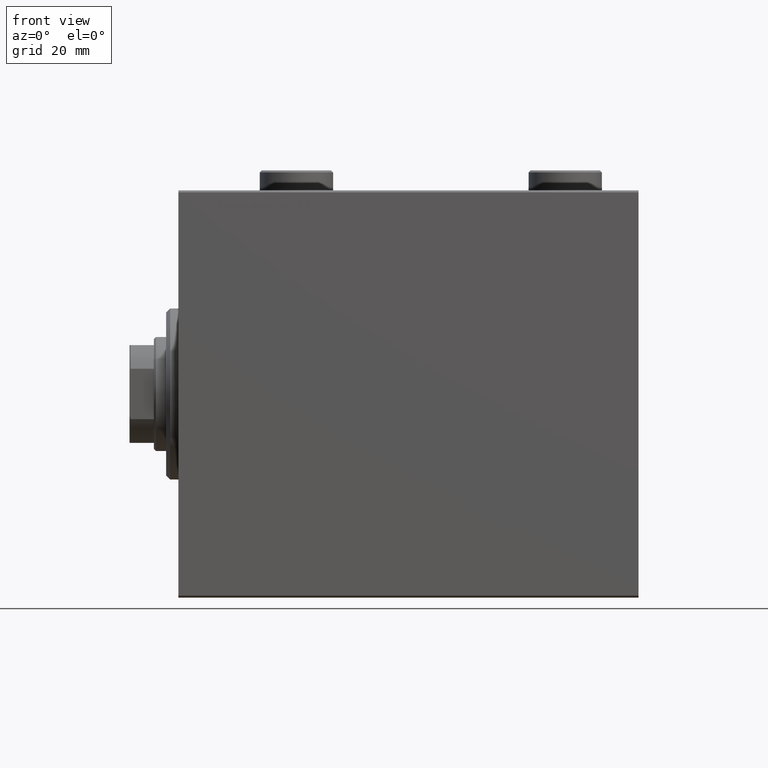
[diagram: clean part render]
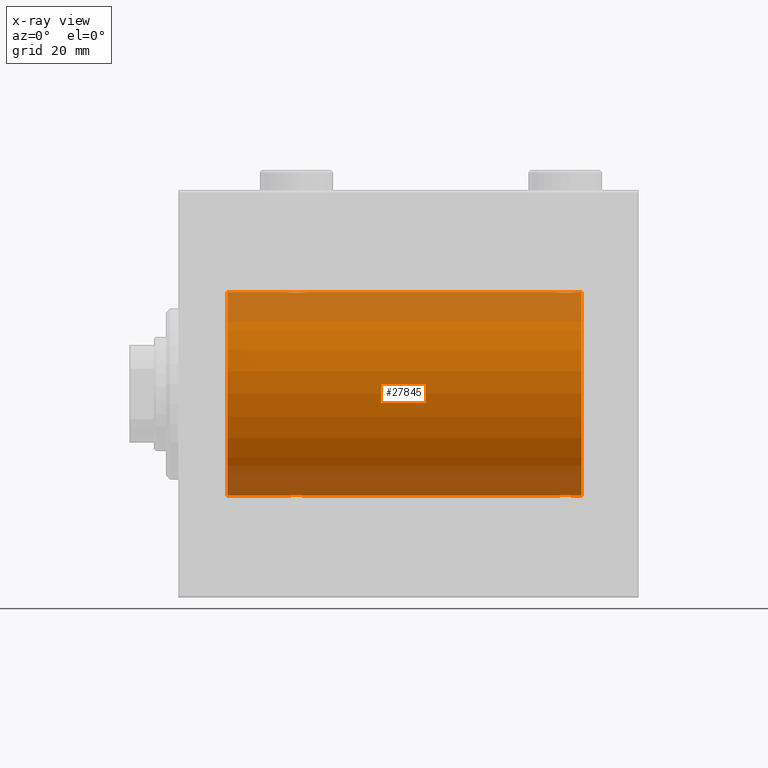
[diagram: x-ray — body ghosted, one internal face saturated and labeled with its STEP entity id]
A machine part, front view, then the same camera in x-ray: the body is ghosted and one INTERNAL B-rep face — a face not visible from any outside direction — is saturated and labeled: STEP entity #27845.
In plain terms, the highlighted cylindrical surface (partial cylindrical patch) has radius 25 mm, axis along (-1, -0, -0).
Its self-contained STEP definition (entity closure, byte-faithful):
#220 = DIRECTION ( 'NONE',  ( 0.000000000000000000, 0.000000000000000000, 1.000000000000000000 ) ) ;
#606 = DIRECTION ( 'NONE',  ( -1.000000000000000000, -0.000000000000000000, -0.000000000000000000 ) ) ;
#705 = EDGE_CURVE ( 'NONE', #6483, #20748, #33404, .T. ) ;
#1134 = CARTESIAN_POINT ( 'NONE',  ( 96.88185954148646317, -1.653834020452933817, 24.94550385189585029 ) ) ;
#1149 = CARTESIAN_POINT ( 'NONE',  ( 96.25383195424504379, -2.169003991399867992, -24.90589728951137971 ) ) ;
#1434 = CARTESIAN_POINT ( 'NONE',  ( 11.99999999999999645, 3.061616997868383043E-15, -25.00000000000000000 ) ) ;
#1480 = VECTOR ( 'NONE', #26806, 1000.000000000000000 ) ;
#1488 = CARTESIAN_POINT ( 'NONE',  ( 30.98749815834398902, -1.525407911884361312, -24.95379469572362652 ) ) ;
#1588 = CARTESIAN_POINT ( 'NONE',  ( 92.50000000000000000, -0.1631750940176218967, 25.00000000000000355 ) ) ;
#1950 = CARTESIAN_POINT ( 'NONE',  ( 28.83676410361457343, -2.500125740978191846, -24.87467329022545925 ) ) ;
#2114 = CARTESIAN_POINT ( 'NONE',  ( 92.50000000000000000, -1.011913705137797072E-14, -25.00000000000000000 ) ) ;
#2138 = DIRECTION ( 'NONE',  ( -1.000000000000000000, -0.000000000000000000, -0.000000000000000000 ) ) ;
#2205 = VERTEX_POINT ( 'NONE', #1434 ) ;
#2404 = CARTESIAN_POINT ( 'NONE',  ( 27.11814045851354038, -1.653834020452936038, -24.94550385189584674 ) ) ;
#2728 = CARTESIAN_POINT ( 'NONE',  ( 29.80435660916301543, -2.372734907014179662, 24.88722742718433167 ) ) ;
#3566 = DIRECTION ( 'NONE',  ( -1.000000000000000000, 0.000000000000000000, 0.000000000000000000 ) ) ;
#4059 = VECTOR ( 'NONE', #20863, 1000.000000000000000 ) ;
#4135 = VECTOR ( 'NONE', #606, 1000.000000000000000 ) ;
#4167 = CARTESIAN_POINT ( 'NONE',  ( 96.11036796508864199, -2.245863995402901825, -24.89899750494196695 ) ) ;
#4360 = EDGE_CURVE ( 'NONE', #15961, #2205, #8487, .T. ) ;
#4388 = CARTESIAN_POINT ( 'NONE',  ( 95.64904390169098747, -2.419770561643910245, -24.88263927071751525 ) ) ;
#4490 = CARTESIAN_POINT ( 'NONE',  ( 31.37215969408607563, -0.8058335233485418581, -24.98746277938382931 ) ) ;
#4592 = CARTESIAN_POINT ( 'NONE',  ( 94.83293504821943998, -2.499872792855085013, 24.87469871246082675 ) ) ;
#4716 = CARTESIAN_POINT ( 'NONE',  ( 31.24760251019550950, -1.106703319666878071, -24.97594585958023572 ) ) ;
#4822 = CARTESIAN_POINT ( 'NONE',  ( 97.43349355239749343, -0.6588655613945809675, 24.99312727339970053 ) ) ;
#4836 = CARTESIAN_POINT ( 'NONE',  ( 94.83676410361456988, -2.500125740978195843, -24.87467329022544860 ) ) ;
#4951 = CARTESIAN_POINT ( 'NONE',  ( 26.83172358506043054, -1.255214705003178555, -24.96884293994578030 ) ) ;
#5069 = CARTESIAN_POINT ( 'NONE',  ( 92.50000000000000000, -0.3305063766663863256, -25.00000000000000355 ) ) ;
#5175 = CARTESIAN_POINT ( 'NONE',  ( 29.16706495178060621, -2.499872792855077464, -24.87469871246082320 ) ) ;
#5395 = ORIENTED_EDGE ( 'NONE', *, *, #32119, .T. ) ;
#5507 = CARTESIAN_POINT ( 'NONE',  ( 95.80435660916305096, -2.372734907014176553, 24.88722742718433523 ) ) ;
#6211 = VECTOR ( 'NONE', #36476, 1000.000000000000000 ) ;
#6483 = VERTEX_POINT ( 'NONE', #41423 ) ;
#6575 = CARTESIAN_POINT ( 'NONE',  ( 99.00000000000000000, 0.000000000000000000, 0.000000000000000000 ) ) ;
#6640 = CARTESIAN_POINT ( 'NONE',  ( 28.67052319885731038, -2.483544361357275854, 24.87635491893501793 ) ) ;
#7087 = CARTESIAN_POINT ( 'NONE',  ( 30.98538033717095175, -1.528152964861317464, 24.95362559291379156 ) ) ;
#8077 = CARTESIAN_POINT ( 'NONE',  ( 97.50000000000000000, 3.061616978466896943E-15, -25.00000000000000000 ) ) ;
#8252 = LINE ( 'NONE', #40155, #35030 ) ;
#8282 = CARTESIAN_POINT ( 'NONE',  ( 96.98538033717096596, -1.528152964861309915, 24.95362559291379156 ) ) ;
#8298 = CARTESIAN_POINT ( 'NONE',  ( 97.37215969408609340, -0.8058335233485420801, -24.98746277938382931 ) ) ;
#8308 = VERTEX_POINT ( 'NONE', #2114 ) ;
#8404 = CARTESIAN_POINT ( 'NONE',  ( 30.52536182243081342, -1.987446652080259391, -24.92104239223420592 ) ) ;
#8487 = LINE ( 'NONE', #32774, #6211 ) ;
#8529 = CARTESIAN_POINT ( 'NONE',  ( 93.01461966282907667, -1.528152964861315022, -24.95362559291378091 ) ) ;
#8812 = DIRECTION ( 'NONE',  ( -1.000000000000000000, -0.000000000000000000, -0.000000000000000000 ) ) ;
#8869 = CARTESIAN_POINT ( 'NONE',  ( 30.11036796508864910, -2.245863995402895164, -24.89899750494197406 ) ) ;
#9557 = EDGE_CURVE ( 'NONE', #20748, #36184, #17256, .T. ) ;
#9968 = AXIS2_PLACEMENT_3D ( 'NONE', #35359, #34676, #220 ) ;
#10110 = CARTESIAN_POINT ( 'NONE',  ( 28.83293504821939379, -2.499872792855087678, 24.87469871246082320 ) ) ;
#10336 = CARTESIAN_POINT ( 'NONE',  ( 31.16827641493956591, -1.255214705003186770, 24.96884293994577320 ) ) ;
#10398 = CARTESIAN_POINT ( 'NONE',  ( 31.50000000000000000, -2.684100552846272733E-15, 25.00000000000000000 ) ) ;
#10555 = CARTESIAN_POINT ( 'NONE',  ( 27.88963203491136156, -2.245863995402906266, 24.89899750494197050 ) ) ;
#10850 = ORIENTED_EDGE ( 'NONE', *, *, #705, .F. ) ;
#11080 = EDGE_CURVE ( 'NONE', #6483, #30673, #35192, .T. ) ;
#11422 = LINE ( 'NONE', #15749, #44164 ) ;
#11537 = CARTESIAN_POINT ( 'NONE',  ( 96.25084023924055998, -2.170728182476720836, 24.90574631553725027 ) ) ;
#11544 = B_SPLINE_CURVE_WITH_KNOTS ( 'NONE', 3,
 ( #41776, #38531, #21210, #20977, #14030, #28128, #20285, #38316, #17269, #34392, #42230, #41329, #10555, #35072, #24669, #6640, #10110, #16824, #14245, #24215, #2728, #34841, #37853, #42010, #38763, #45018, #7087, #10336, #31371, #24440, #45468, #23754 ),
 .UNSPECIFIED., .F., .F.,
 ( 4, 2, 2, 2, 2, 2, 2, 2, 2, 2, 2, 2, 2, 2, 2, 4 ),
 ( 0.007821024441662254717, 0.008309723826317859385, 0.008798423210973464054, 0.009287122595629070457, 0.009775821980284676860, 0.01026452136494028153, 0.01075322074959588620, 0.01124192013425149260, 0.01173061951890709900, 0.01221931890356270367, 0.01270801828821830834, 0.01319671767287391301, 0.01368541705752951768, 0.01417411644218512408, 0.01466281582684072701, 0.01564021459615193982 ),
 .UNSPECIFIED. ) ;
#11557 = CARTESIAN_POINT ( 'NONE',  ( 93.34878866440892864, -1.884161199660624897, -24.92916496727982789 ) ) ;
#11664 = CARTESIAN_POINT ( 'NONE',  ( 31.50000000000000000, -0.1631750940176180942, -25.00000000000001066 ) ) ;
#11888 = CARTESIAN_POINT ( 'NONE',  ( 31.48417840057656747, -0.3254210271412200650, -24.99840249400844527 ) ) ;
#12006 = CARTESIAN_POINT ( 'NONE',  ( 97.17011290280923674, -1.252049606094332690, -24.96900299967627035 ) ) ;
#12193 = DIRECTION ( 'NONE',  ( -1.000000000000000000, -0.000000000000000000, -0.000000000000000000 ) ) ;
#12223 = CARTESIAN_POINT ( 'NONE',  ( 93.74616804575498463, -2.169003991399877762, 24.90589728951138682 ) ) ;
#12352 = CARTESIAN_POINT ( 'NONE',  ( 29.32947680114268252, -2.483544361357266084, -24.87635491893501083 ) ) ;
#12455 = CARTESIAN_POINT ( 'NONE',  ( 93.34616663850661666, -1.881857718844724303, 24.92933960374833902 ) ) ;
#12691 = ORIENTED_EDGE ( 'NONE', *, *, #30601, .F. ) ;
#12805 = CARTESIAN_POINT ( 'NONE',  ( 29.64904390169096970, -2.419770561643905804, -24.88263927071751169 ) ) ;
#13790 = CARTESIAN_POINT ( 'NONE',  ( 99.00000000000000000, 0.000000000000000000, 25.00000000000000000 ) ) ;
#14030 = CARTESIAN_POINT ( 'NONE',  ( 26.62784030591392792, -0.8058335233485494076, 24.98746277938382576 ) ) ;
#14245 = CARTESIAN_POINT ( 'NONE',  ( 29.32596570039460104, -2.484007091859770089, 24.87630842367763506 ) ) ;
#15008 = CARTESIAN_POINT ( 'NONE',  ( 93.89276154161589716, -2.247417070759902380, -24.89885693081945917 ) ) ;
#15231 = CARTESIAN_POINT ( 'NONE',  ( 94.35095609830902674, -2.419770561643911133, 24.88263927071751169 ) ) ;
#15248 = CARTESIAN_POINT ( 'NONE',  ( 95.80788342405807612, -2.371528299825749198, -24.88734287464371420 ) ) ;
#15474 = CARTESIAN_POINT ( 'NONE',  ( 97.42014909220928587, -0.6480119923854191777, -24.99212088949390420 ) ) ;
#15571 = EDGE_CURVE ( 'NONE', #30673, #8308, #39141, .T. ) ;
#15577 = CARTESIAN_POINT ( 'NONE',  ( 26.50000000000000000, -0.3305063766663763336, -25.00000000000000355 ) ) ;
#15681 = CARTESIAN_POINT ( 'NONE',  ( 93.01250184165606072, -1.525407911884365530, 24.95379469572362297 ) ) ;
#15749 = CARTESIAN_POINT ( 'NONE',  ( 99.00000000000000000, 3.061616997868383043E-15, -25.00000000000000000 ) ) ;
#15869 = CARTESIAN_POINT ( 'NONE',  ( 26.50000000000000355, -4.113702575029848227E-15, -25.00000000000000000 ) ) ;
#15914 = CARTESIAN_POINT ( 'NONE',  ( 92.75239748980449406, -1.106703319666889396, 24.97594585958023572 ) ) ;
#15961 = VERTEX_POINT ( 'NONE', #15869 ) ;
#16046 = CARTESIAN_POINT ( 'NONE',  ( 28.19564339083698457, -2.372734907014171224, -24.88722742718433523 ) ) ;
#16233 = DIRECTION ( 'NONE',  ( 0.000000000000000000, 0.000000000000000000, 1.000000000000000000 ) ) ;
#16276 = CARTESIAN_POINT ( 'NONE',  ( 27.01461966282905180, -1.528152964861308138, -24.95362559291378801 ) ) ;
#16685 = ORIENTED_EDGE ( 'NONE', *, *, #34015, .T. ) ;
#16824 = CARTESIAN_POINT ( 'NONE',  ( 29.16323589638543368, -2.500125740978201616, 24.87467329022545215 ) ) ;
#17256 = LINE ( 'NONE', #13790, #4135 ) ;
#17269 = CARTESIAN_POINT ( 'NONE',  ( 27.11587617213529100, -1.651251241585107055, 24.94567559498349141 ) ) ;
#18270 = CARTESIAN_POINT ( 'NONE',  ( 94.19564339083697746, -2.372734907014179218, -24.88722742718433878 ) ) ;
#18488 = CARTESIAN_POINT ( 'NONE',  ( 94.67403429960538119, -2.484007091859763428, -24.87630842367763151 ) ) ;
#18694 = CARTESIAN_POINT ( 'NONE',  ( 96.52256774340187917, -1.989585286700245925, 24.92087098724765681 ) ) ;
#18782 = CARTESIAN_POINT ( 'NONE',  ( 97.50000000000000000, 3.061616978466896943E-15, -25.00000000000000000 ) ) ;
#18931 = CARTESIAN_POINT ( 'NONE',  ( 97.50000000000000000, 2.755618163048309144E-15, 25.00000000000000000 ) ) ;
#18948 = CARTESIAN_POINT ( 'NONE',  ( 93.74915976075948265, -2.170728182476727053, -24.90574631553725027 ) ) ;
#19159 = CARTESIAN_POINT ( 'NONE',  ( 92.50000000000000000, -1.940203396391078535E-23, 25.00000000000000000 ) ) ;
#19175 = CARTESIAN_POINT ( 'NONE',  ( 92.50000000000000000, -1.011913705137797072E-14, -25.00000000000000000 ) ) ;
#19218 = EDGE_CURVE ( 'NONE', #8308, #27846, #11422, .T. ) ;
#19618 = CARTESIAN_POINT ( 'NONE',  ( 95.64560666148634027, -2.420689345803758830, 24.88254961038874313 ) ) ;
#19751 = CARTESIAN_POINT ( 'NONE',  ( 30.88412382786470900, -1.651251241585097063, -24.94567559498348075 ) ) ;
#19974 = CARTESIAN_POINT ( 'NONE',  ( 27.89276154161591137, -2.247417070759893498, -24.89885693081945917 ) ) ;
#20285 = CARTESIAN_POINT ( 'NONE',  ( 26.82988709719076326, -1.252049606094339795, 24.96900299967627745 ) ) ;
#20748 = VERTEX_POINT ( 'NONE', #35898 ) ;
#20774 = ORIENTED_EDGE ( 'NONE', *, *, #21027, .F. ) ;
#20863 = DIRECTION ( 'NONE',  ( -1.000000000000000000, -0.000000000000000000, -0.000000000000000000 ) ) ;
#20907 = DIRECTION ( 'NONE',  ( 0.000000000000000000, 0.000000000000000000, 1.000000000000000000 ) ) ;
#20977 = CARTESIAN_POINT ( 'NONE',  ( 26.57985090779070347, -0.6480119923854233965, 24.99212088949390775 ) ) ;
#21027 = EDGE_CURVE ( 'NONE', #27850, #27889, #30502, .T. ) ;
#21210 = CARTESIAN_POINT ( 'NONE',  ( 26.51582159942343253, -0.3254210271412228961, 24.99840249400844527 ) ) ;
#22070 = CARTESIAN_POINT ( 'NONE',  ( 31.50000000000000000, 3.061616978460191625E-15, -25.00000000000000000 ) ) ;
#22185 = CARTESIAN_POINT ( 'NONE',  ( 92.83172358506043054, -1.255214705003186548, -24.96884293994577675 ) ) ;
#22396 = CARTESIAN_POINT ( 'NONE',  ( 97.16827641493955525, -1.255214705003178555, 24.96884293994578030 ) ) ;
#22513 = CIRCLE ( 'NONE', #9968, 25.00000000000000000 ) ;
#22523 = CARTESIAN_POINT ( 'NONE',  ( 27.47743225659810307, -1.989585286700244149, -24.92087098724765681 ) ) ;
#22531 = B_SPLINE_CURVE_WITH_KNOTS ( 'NONE', 3,
 ( #22070, #11664, #11888, #36169, #4490, #4716, #32926, #1488, #19751, #26906, #8404, #23204, #8869, #33378, #12805, #12352, #5175, #1950, #34074, #26213, #16046, #19974, #26452, #22523, #40311, #2404, #16276, #4951, #29918, #33849, #15577, #43777 ),
 .UNSPECIFIED., .F., .F.,
 ( 4, 2, 2, 2, 2, 2, 2, 2, 2, 2, 2, 2, 2, 2, 2, 4 ),
 ( 0.007821024441662299820, 0.008309723826317907958, 0.008798423210973517830, 0.009287122595629122498, 0.009775821980284727167, 0.01026452136494033184, 0.01075322074959593650, 0.01124192013425154291, 0.01173061951890714757, 0.01221931890356275051, 0.01270801828821835691, 0.01319671767287396158, 0.01368541705752956625, 0.01417411644218517092, 0.01466281582684077732, 0.01564021459615199186 ),
 .UNSPECIFIED. ) ;
#22649 = CARTESIAN_POINT ( 'NONE',  ( 92.75393620905933290, -1.109818057797422153, -24.97580694515541921 ) ) ;
#22710 = CARTESIAN_POINT ( 'NONE',  ( 99.00000000000000000, 0.000000000000000000, 0.000000000000000000 ) ) ;
#22933 = FACE_OUTER_BOUND ( 'NONE', #40055, .T. ) ;
#23032 = ORIENTED_EDGE ( 'NONE', *, *, #15571, .T. ) ;
#23204 = CARTESIAN_POINT ( 'NONE',  ( 30.25383195424502958, -2.169003991399867104, -24.90589728951138326 ) ) ;
#23754 = CARTESIAN_POINT ( 'NONE',  ( 31.50000000000000000, -2.684100552846272733E-15, 25.00000000000000000 ) ) ;
#24215 = CARTESIAN_POINT ( 'NONE',  ( 29.64560666148632606, -2.420689345803765935, 24.88254961038873958 ) ) ;
#24440 = CARTESIAN_POINT ( 'NONE',  ( 31.43349355239747567, -0.6588655613945897382, 24.99312727339969697 ) ) ;
#24669 = CARTESIAN_POINT ( 'NONE',  ( 28.35095609830903385, -2.419770561643914686, 24.88263927071751169 ) ) ;
#25207 = CARTESIAN_POINT ( 'NONE',  ( 97.48417840057656747, -0.3254210271412191768, -24.99840249400844172 ) ) ;
#25639 = CARTESIAN_POINT ( 'NONE',  ( 93.11587617213531587, -1.651251241585109275, 24.94567559498348785 ) ) ;
#25657 = CARTESIAN_POINT ( 'NONE',  ( 93.11814045851355104, -1.653834020452946696, -24.94550385189584318 ) ) ;
#25872 = CARTESIAN_POINT ( 'NONE',  ( 95.32596570039463302, -2.484007091859765204, 24.87630842367763861 ) ) ;
#26106 = CARTESIAN_POINT ( 'NONE',  ( 93.47743225659813504, -1.989585286700255473, -24.92087098724766747 ) ) ;
#26213 = CARTESIAN_POINT ( 'NONE',  ( 28.35439333851368460, -2.420689345803756165, -24.88254961038873958 ) ) ;
#26452 = CARTESIAN_POINT ( 'NONE',  ( 27.74915976075945068, -2.170728182476717283, -24.90574631553725027 ) ) ;
#26553 = CARTESIAN_POINT ( 'NONE',  ( 94.19211657594196652, -2.371528299825750974, 24.88734287464371420 ) ) ;
#26806 = DIRECTION ( 'NONE',  ( -1.000000000000000000, -0.000000000000000000, -0.000000000000000000 ) ) ;
#26906 = CARTESIAN_POINT ( 'NONE',  ( 30.65383336149337978, -1.881857718844712091, -24.92933960374833546 ) ) ;
#27032 = ORIENTED_EDGE ( 'NONE', *, *, #19218, .T. ) ;
#27664 = ORIENTED_EDGE ( 'NONE', *, *, #4360, .T. ) ;
#27845 = ADVANCED_FACE ( 'NONE', ( #22933 ), #44427, .F. ) ;
#27846 = VERTEX_POINT ( 'NONE', #37035 ) ;
#27850 = VERTEX_POINT ( 'NONE', #40958 ) ;
#27889 = VERTEX_POINT ( 'NONE', #45332 ) ;
#28128 = CARTESIAN_POINT ( 'NONE',  ( 26.75239748980448695, -1.106703319666887175, 24.97594585958023572 ) ) ;
#28472 = CARTESIAN_POINT ( 'NONE',  ( 99.00000000000000000, 3.061616997868383043E-15, -25.00000000000000000 ) ) ;
#28614 = ORIENTED_EDGE ( 'NONE', *, *, #11080, .T. ) ;
#28894 = CARTESIAN_POINT ( 'NONE',  ( 97.50000000000000000, -0.1631750940176178721, -25.00000000000000711 ) ) ;
#29563 = CARTESIAN_POINT ( 'NONE',  ( 93.47463817756923277, -1.987446652080270271, 24.92104239223421303 ) ) ;
#29789 = CARTESIAN_POINT ( 'NONE',  ( 92.62784030591393503, -0.8058335233485520721, 24.98746277938383287 ) ) ;
#29918 = CARTESIAN_POINT ( 'NONE',  ( 26.75393620905933290, -1.109818057797416158, -24.97580694515542277 ) ) ;
#30502 = LINE ( 'NONE', #37215, #1480 ) ;
#30601 = EDGE_CURVE ( 'NONE', #34824, #38540, #8252, .T. ) ;
#30673 = VERTEX_POINT ( 'NONE', #18782 ) ;
#31371 = CARTESIAN_POINT ( 'NONE',  ( 31.24606379094066355, -1.109818057797419710, 24.97580694515541921 ) ) ;
#32119 = EDGE_CURVE ( 'NONE', #2205, #27889, #22513, .T. ) ;
#32452 = EDGE_CURVE ( 'NONE', #27850, #38540, #11544, .T. ) ;
#32582 = CARTESIAN_POINT ( 'NONE',  ( 94.35439333851367394, -2.420689345803758386, -24.88254961038873958 ) ) ;
#32774 = CARTESIAN_POINT ( 'NONE',  ( 99.00000000000000000, 3.061616997868383043E-15, -25.00000000000000000 ) ) ;
#32797 = CARTESIAN_POINT ( 'NONE',  ( 96.65121133559114242, -1.884161199660613351, 24.92916496727982434 ) ) ;
#32926 = CARTESIAN_POINT ( 'NONE',  ( 31.17011290280925451, -1.252049606094333578, -24.96900299967627745 ) ) ;
#33258 = CARTESIAN_POINT ( 'NONE',  ( 92.82988709719073483, -1.252049606094335799, 24.96900299967626680 ) ) ;
#33378 = CARTESIAN_POINT ( 'NONE',  ( 29.80788342405805835, -2.371528299825741648, -24.88734287464370709 ) ) ;
#33404 = CIRCLE ( 'NONE', #39309, 25.00000000000000000 ) ;
#33722 = CARTESIAN_POINT ( 'NONE',  ( 96.10723845838410284, -2.247417070759898383, 24.89885693081947338 ) ) ;
#33849 = CARTESIAN_POINT ( 'NONE',  ( 26.56650644760252789, -0.6588655613945878509, -24.99312727339970763 ) ) ;
#34015 = EDGE_CURVE ( 'NONE', #34824, #36184, #40191, .T. ) ;
#34074 = CARTESIAN_POINT ( 'NONE',  ( 28.67403429960540606, -2.484007091859761207, -24.87630842367763506 ) ) ;
#34392 = CARTESIAN_POINT ( 'NONE',  ( 27.34616663850662377, -1.881857718844722527, 24.92933960374833902 ) ) ;
#34425 = ORIENTED_EDGE ( 'NONE', *, *, #42503, .T. ) ;
#34676 = DIRECTION ( 'NONE',  ( -1.000000000000000000, 0.000000000000000000, 0.000000000000000000 ) ) ;
#34824 = VERTEX_POINT ( 'NONE', #38839 ) ;
#34841 = CARTESIAN_POINT ( 'NONE',  ( 30.10723845838410284, -2.247417070759901936, 24.89885693081946272 ) ) ;
#35030 = VECTOR ( 'NONE', #12193, 1000.000000000000000 ) ;
#35072 = CARTESIAN_POINT ( 'NONE',  ( 28.19211657594194875, -2.371528299825753638, 24.88734287464371420 ) ) ;
#35192 = LINE ( 'NONE', #28472, #4059 ) ;
#35359 = CARTESIAN_POINT ( 'NONE',  ( 11.99999999999999645, 0.000000000000000000, 0.000000000000000000 ) ) ;
#35834 = CARTESIAN_POINT ( 'NONE',  ( 96.88412382786474097, -1.651251241585100837, -24.94567559498349141 ) ) ;
#35898 = CARTESIAN_POINT ( 'NONE',  ( 99.00000000000000000, 0.000000000000000000, 25.00000000000000000 ) ) ;
#36068 = CARTESIAN_POINT ( 'NONE',  ( 96.98749815834395349, -1.525407911884361090, -24.95379469572362297 ) ) ;
#36169 = CARTESIAN_POINT ( 'NONE',  ( 31.42014909220930363, -0.6480119923854200659, -24.99212088949392196 ) ) ;
#36184 = VERTEX_POINT ( 'NONE', #36451 ) ;
#36267 = CARTESIAN_POINT ( 'NONE',  ( 92.57985090779071413, -0.6480119923854255060, 24.99212088949390775 ) ) ;
#36400 = AXIS2_PLACEMENT_3D ( 'NONE', #22710, #2138, #16233 ) ;
#36451 = CARTESIAN_POINT ( 'NONE',  ( 97.50000000000000000, 2.755618163048309144E-15, 25.00000000000000000 ) ) ;
#36476 = DIRECTION ( 'NONE',  ( -1.000000000000000000, -0.000000000000000000, -0.000000000000000000 ) ) ;
#36498 = CARTESIAN_POINT ( 'NONE',  ( 97.24606379094065289, -1.109818057797411273, 24.97580694515542277 ) ) ;
#36515 = CARTESIAN_POINT ( 'NONE',  ( 95.32947680114267541, -2.483544361357270969, -24.87635491893501793 ) ) ;
#36753 = CARTESIAN_POINT ( 'NONE',  ( 92.56650644760253499, -0.6588655613945950673, -24.99312727339970053 ) ) ;
#36853 = ORIENTED_EDGE ( 'NONE', *, *, #32452, .T. ) ;
#37035 = CARTESIAN_POINT ( 'NONE',  ( 31.50000000000000000, 3.061616978460191625E-15, -25.00000000000000000 ) ) ;
#37215 = CARTESIAN_POINT ( 'NONE',  ( 99.00000000000000000, 0.000000000000000000, 25.00000000000000000 ) ) ;
#37853 = CARTESIAN_POINT ( 'NONE',  ( 30.25084023924055288, -2.170728182476724832, 24.90574631553725027 ) ) ;
#38316 = CARTESIAN_POINT ( 'NONE',  ( 27.01250184165602164, -1.525407911884368417, 24.95379469572363007 ) ) ;
#38531 = CARTESIAN_POINT ( 'NONE',  ( 26.50000000000000711, -0.1631750940176210085, 25.00000000000000355 ) ) ;
#38540 = VERTEX_POINT ( 'NONE', #10398 ) ;
#38763 = CARTESIAN_POINT ( 'NONE',  ( 30.65121133559112820, -1.884161199660621344, 24.92916496727982434 ) ) ;
#38839 = CARTESIAN_POINT ( 'NONE',  ( 92.50000000000000000, -1.940203396391078535E-23, 25.00000000000000000 ) ) ;
#39141 = B_SPLINE_CURVE_WITH_KNOTS ( 'NONE', 3,
 ( #8077, #28894, #25207, #15474, #8298, #39523, #12006, #36068, #35834, #40201, #43218, #1149, #4167, #15248, #4388, #36515, #39756, #4836, #18488, #32582, #18270, #15008, #18948, #26106, #11557, #25657, #8529, #22185, #22649, #36753, #5069, #19175 ),
 .UNSPECIFIED., .F., .F.,
 ( 4, 2, 2, 2, 2, 2, 2, 2, 2, 2, 2, 2, 2, 2, 2, 4 ),
 ( 0.007821024441662289411, 0.008309723826317894080, 0.008798423210973500483, 0.009287122595629105151, 0.009775821980284711554, 0.01026452136494031622, 0.01075322074959592263, 0.01124192013425152903, 0.01173061951890713370, 0.01221931890356273837, 0.01270801828821834303, 0.01319671767287394944, 0.01368541705752955411, 0.01417411644218516051, 0.01466281582684076518, 0.01564021459615199186 ),
 .UNSPECIFIED. ) ;
#39309 = AXIS2_PLACEMENT_3D ( 'NONE', #6575, #3566, #20907 ) ;
#39523 = CARTESIAN_POINT ( 'NONE',  ( 97.24760251019552015, -1.106703319666879182, -24.97594585958024282 ) ) ;
#39756 = CARTESIAN_POINT ( 'NONE',  ( 95.16706495178058844, -2.499872792855082793, -24.87469871246081965 ) ) ;
#40055 = EDGE_LOOP ( 'NONE', ( #10850, #28614, #23032, #27032, #34425, #27664, #5395, #20774, #36853, #12691, #16685, #42934 ) ) ;
#40155 = CARTESIAN_POINT ( 'NONE',  ( 99.00000000000000000, 0.000000000000000000, 25.00000000000000000 ) ) ;
#40191 = B_SPLINE_CURVE_WITH_KNOTS ( 'NONE', 3,
 ( #19159, #1588, #44121, #36267, #29789, #15914, #33258, #15681, #25639, #12455, #29563, #12223, #40419, #26553, #15231, #40647, #4592, #43882, #25872, #19618, #5507, #33722, #11537, #18694, #32797, #1134, #8282, #22396, #36498, #4822, #43654, #18931 ),
 .UNSPECIFIED., .F., .F.,
 ( 4, 2, 2, 2, 2, 2, 2, 2, 2, 2, 2, 2, 2, 2, 2, 4 ),
 ( 0.007821024441662285942, 0.008309723826317894080, 0.008798423210973503952, 0.009287122595629112090, 0.009775821980284721963, 0.01026452136494033010, 0.01075322074959593997, 0.01124192013425154811, 0.01173061951890715798, 0.01221931890356276612, 0.01270801828821837426, 0.01319671767287398240, 0.01368541705752959400, 0.01417411644218520214, 0.01466281582684081028, 0.01564021459615201268 ),
 .UNSPECIFIED. ) ;
#40201 = CARTESIAN_POINT ( 'NONE',  ( 96.65383336149336913, -1.881857718844716310, -24.92933960374833902 ) ) ;
#40311 = CARTESIAN_POINT ( 'NONE',  ( 27.34878866440888245, -1.884161199660614017, -24.92916496727982434 ) ) ;
#40419 = CARTESIAN_POINT ( 'NONE',  ( 93.88963203491134379, -2.245863995402903601, 24.89899750494197050 ) ) ;
#40647 = CARTESIAN_POINT ( 'NONE',  ( 94.67052319885732459, -2.483544361357273189, 24.87635491893502149 ) ) ;
#40958 = CARTESIAN_POINT ( 'NONE',  ( 26.50000000000000355, -1.940558383798427991E-23, 25.00000000000000000 ) ) ;
#41329 = CARTESIAN_POINT ( 'NONE',  ( 27.74616804575497042, -2.169003991399875098, 24.90589728951138326 ) ) ;
#41423 = CARTESIAN_POINT ( 'NONE',  ( 99.00000000000000000, 3.061616997868383043E-15, -25.00000000000000000 ) ) ;
#41776 = CARTESIAN_POINT ( 'NONE',  ( 26.50000000000000355, -1.940558383798427991E-23, 25.00000000000000000 ) ) ;
#42010 = CARTESIAN_POINT ( 'NONE',  ( 30.52256774340189693, -1.989585286700248590, 24.92087098724766392 ) ) ;
#42230 = CARTESIAN_POINT ( 'NONE',  ( 27.47463817756919013, -1.987446652080266496, 24.92104239223420592 ) ) ;
#42503 = EDGE_CURVE ( 'NONE', #27846, #15961, #22531, .T. ) ;
#42934 = ORIENTED_EDGE ( 'NONE', *, *, #9557, .F. ) ;
#43218 = CARTESIAN_POINT ( 'NONE',  ( 96.52536182243080987, -1.987446652080258724, -24.92104239223420592 ) ) ;
#43654 = CARTESIAN_POINT ( 'NONE',  ( 97.50000000000002842, -0.3305063766663757785, 25.00000000000000711 ) ) ;
#43777 = CARTESIAN_POINT ( 'NONE',  ( 26.50000000000000355, -4.113702575029848227E-15, -25.00000000000000000 ) ) ;
#43882 = CARTESIAN_POINT ( 'NONE',  ( 95.16323589638543012, -2.500125740978196731, 24.87467329022545925 ) ) ;
#44121 = CARTESIAN_POINT ( 'NONE',  ( 92.51582159942343253, -0.3254210271412246169, 24.99840249400844883 ) ) ;
#44164 = VECTOR ( 'NONE', #8812, 1000.000000000000000 ) ;
#44427 = CYLINDRICAL_SURFACE ( 'NONE', #36400, 25.00000000000000000 ) ;
#45018 = CARTESIAN_POINT ( 'NONE',  ( 30.88185954148645962, -1.653834020452942255, 24.94550385189584674 ) ) ;
#45332 = CARTESIAN_POINT ( 'NONE',  ( 11.99999999999999645, 0.000000000000000000, 25.00000000000000000 ) ) ;
#45468 = CARTESIAN_POINT ( 'NONE',  ( 31.49999999999998579, -0.3305063766663716707, 25.00000000000000000 ) ) ;